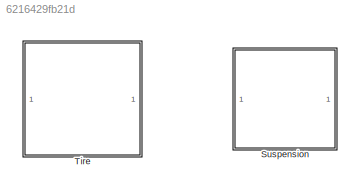
MODEL slx_6216429fb21d
KIND library
CONFIG AbsTol = auto
CONFIG EnableMultiTasking = off
CONFIG FixedStep = auto
CONFIG MaxStep = auto
CONFIG MinStep = auto
CONFIG RelTol = 1e-3
CONFIG SampleTimeConstraint = Unconstrained
CONFIG SolverName = VariableStepAuto
CONFIG StartTime = 0.0
CONFIG StopTime = 10.0
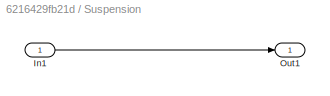
BLOCK [SubSystem] Suspension
BLOCK [Inport] Suspension/In1
BLOCK [Outport] Suspension/Out1
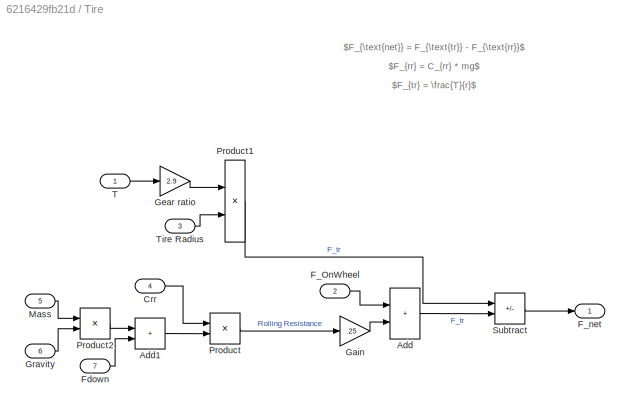
BLOCK [SubSystem] Tire
BLOCK [Sum] Tire/Add
  IconShape = rectangular
BLOCK [Sum] Tire/Add1
  IconShape = rectangular
BLOCK [Inport] Tire/Crr
  Port = 4
BLOCK [Inport] Tire/F_OnWheel
  Port = 2
BLOCK [Outport] Tire/F_net
BLOCK [Inport] Tire/Fdown
  Port = 7
BLOCK [Gain] Tire/Gain
  Gain = .25
BLOCK [Gain] Tire/Gear ratio
  Gain = 2.9
BLOCK [Inport] Tire/Gravity
  Port = 6
BLOCK [Inport] Tire/Mass
  Port = 5
BLOCK [Product] Tire/Product
BLOCK [Product] Tire/Product1
BLOCK [Product] Tire/Product2
BLOCK [Sum] Tire/Subtract
  IconShape = rectangular
  Inputs = +-
BLOCK [Inport] Tire/T
BLOCK [Inport] Tire/Tire Radius
  Port = 3
ANNOTATION Tire: $F_{\text{net}} = F_{\text{tr}} - F_{\text{rr}}$
ANNOTATION Tire: $F_{rr} = C_{rr} * mg$
ANNOTATION Tire: $F_{tr} = \frac{T}{r}$
LINE Suspension/In1:1 -> Suspension/Out1:1
LINE Tire/Add1:1 -> Tire/Product:2
LINE Tire/Add:1 -> Tire/Subtract:2
LINE Tire/Crr:1 -> Tire/Product:1
LINE Tire/F_OnWheel:1 -> Tire/Add:1
LINE Tire/Fdown:1 -> Tire/Add1:2
LINE Tire/Gain:1 -> Tire/Add:2
LINE Tire/Gear ratio:1 -> Tire/Product1:1
LINE Tire/Gravity:1 -> Tire/Product2:2
LINE Tire/Mass:1 -> Tire/Product2:1
LINE Tire/Product1:1 -> Tire/Subtract:1
LINE Tire/Product2:1 -> Tire/Add1:1
LINE Tire/Product:1 -> Tire/Gain:1
LINE Tire/Subtract:1 -> Tire/F_net:1
LINE Tire/T:1 -> Tire/Gear ratio:1
LINE Tire/Tire Radius:1 -> Tire/Product1:2
